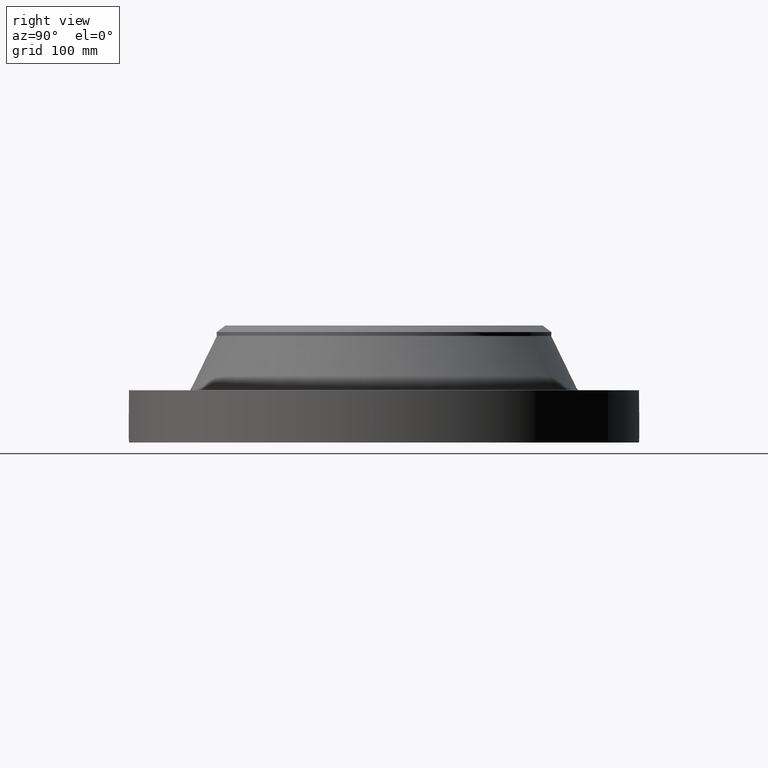
[diagram: clean part render]
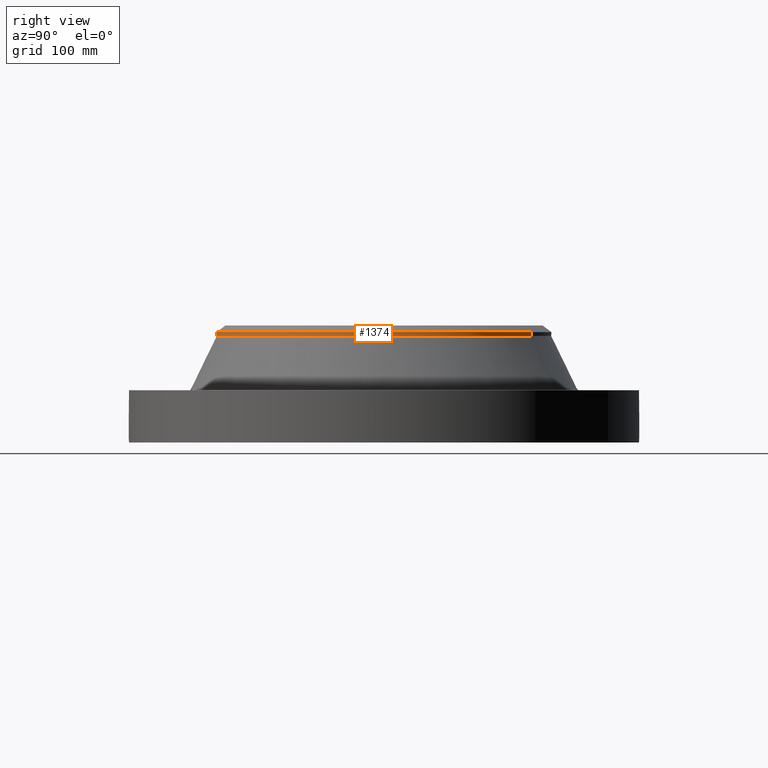
[diagram: same view with one face highlighted and labeled with its STEP entity id]
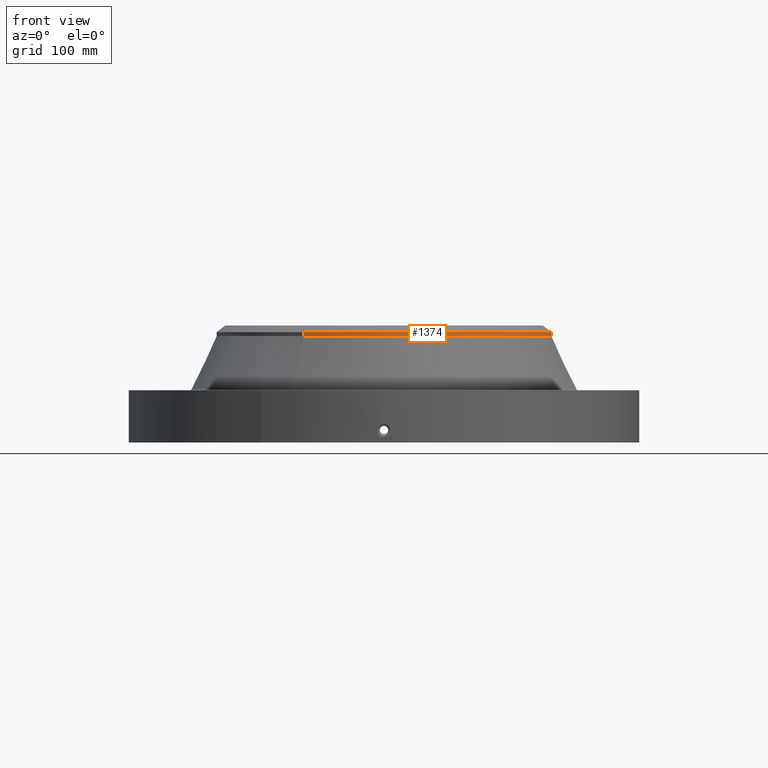
[diagram: same view with one face highlighted and labeled with its STEP entity id]
A machine part, right view. The second image highlights one B-rep face of the part: STEP entity #1374.
A second angle (front view) of the same face is appended — the face is thin or edge-on in the first view.
In plain terms, the highlighted cylindrical surface (partial cylindrical patch) has radius 254 mm, axis along (0, 0, -1).
Its self-contained STEP definition (entity closure, byte-faithful):
#976=AXIS2_PLACEMENT_3D('Circle Axis2P3D',#974,#975,$) ;
#989=AXIS2_PLACEMENT_3D('Circle Axis2P3D',#987,#988,$) ;
#1333=AXIS2_PLACEMENT_3D('Cylinder Axis2P3D',#1330,#1331,#1332) ;
#1364=AXIS2_PLACEMENT_3D('Circle Axis2P3D',#1362,#1363,$) ;
#957=CARTESIAN_POINT('Vertex',(4.79425538606,-8.77582561894,6.59962721704)) ;
#971=CARTESIAN_POINT('Vertex',(-4.79425538606,-8.77582561894,6.59962721704)) ;
#974=CARTESIAN_POINT('Axis2P3D Location',(0.,0.,6.59962721704)) ;
#987=CARTESIAN_POINT('Axis2P3D Location',(0.,0.,6.59962721704)) ;
#991=CARTESIAN_POINT('Vertex',(4.79425538606,8.77582561894,6.59962721704)) ;
#1330=CARTESIAN_POINT('Axis2P3D Location',(0.,0.,3.49750000001)) ;
#1335=CARTESIAN_POINT('Line Origine',(4.79425538606,8.77582561894,6.48151698082)) ;
#1339=CARTESIAN_POINT('Vertex',(4.79425538606,8.77582561894,6.3634067446)) ;
#1346=CARTESIAN_POINT('Vertex',(-4.79425538606,-8.77582561894,6.3634067446)) ;
#1349=CARTESIAN_POINT('Line Origine',(-4.79425538606,-8.77582561894,6.48151698082)) ;
#1362=CARTESIAN_POINT('Axis2P3D Location',(0.,0.,6.3634067446)) ;
#975=DIRECTION('Axis2P3D Direction',(0.,0.,-0.0393700787402)) ;
#988=DIRECTION('Axis2P3D Direction',(0.,0.,-0.0393700787402)) ;
#1331=DIRECTION('Axis2P3D Direction',(0.,0.,-0.0393700787402)) ;
#1332=DIRECTION('Axis2P3D XDirection',(0.0188750212049,0.0345504945626,0.)) ;
#1336=DIRECTION('Vector Direction',(0.,0.,-0.0393700787402)) ;
#1350=DIRECTION('Vector Direction',(0.,0.,-0.0393700787402)) ;
#1363=DIRECTION('Axis2P3D Direction',(0.,0.,-0.0393700787402)) ;
#1337=VECTOR('Line Direction',#1336,0.0393700787402) ;
#1351=VECTOR('Line Direction',#1350,0.0393700787402) ;
#1368=ORIENTED_EDGE('',*,*,#1353,.F.) ;
#1369=ORIENTED_EDGE('',*,*,#1366,.F.) ;
#1370=ORIENTED_EDGE('',*,*,#1341,.T.) ;
#1371=ORIENTED_EDGE('',*,*,#993,.F.) ;
#1372=ORIENTED_EDGE('',*,*,#978,.T.) ;
#1374=ADVANCED_FACE('PartBody',(#1373),#1334,.T.) ;
#977=CIRCLE('generated circle',#976,10.) ;
#990=CIRCLE('generated circle',#989,10.) ;
#1365=CIRCLE('generated circle',#1364,10.) ;
#1334=CYLINDRICAL_SURFACE('generated cylinder',#1333,10.) ;
#978=EDGE_CURVE('',#958,#972,#977,.T.) ;
#993=EDGE_CURVE('',#958,#992,#990,.F.) ;
#1341=EDGE_CURVE('',#1340,#992,#1338,.F.) ;
#1353=EDGE_CURVE('',#1347,#972,#1352,.F.) ;
#1366=EDGE_CURVE('',#1340,#1347,#1365,.T.) ;
#1367=EDGE_LOOP('',(#1368,#1369,#1370,#1371,#1372)) ;
#1373=FACE_OUTER_BOUND('',#1367,.T.) ;
#1338=LINE('Line',#1335,#1337) ;
#1352=LINE('Line',#1349,#1351) ;
#958=VERTEX_POINT('',#957) ;
#972=VERTEX_POINT('',#971) ;
#992=VERTEX_POINT('',#991) ;
#1340=VERTEX_POINT('',#1339) ;
#1347=VERTEX_POINT('',#1346) ;